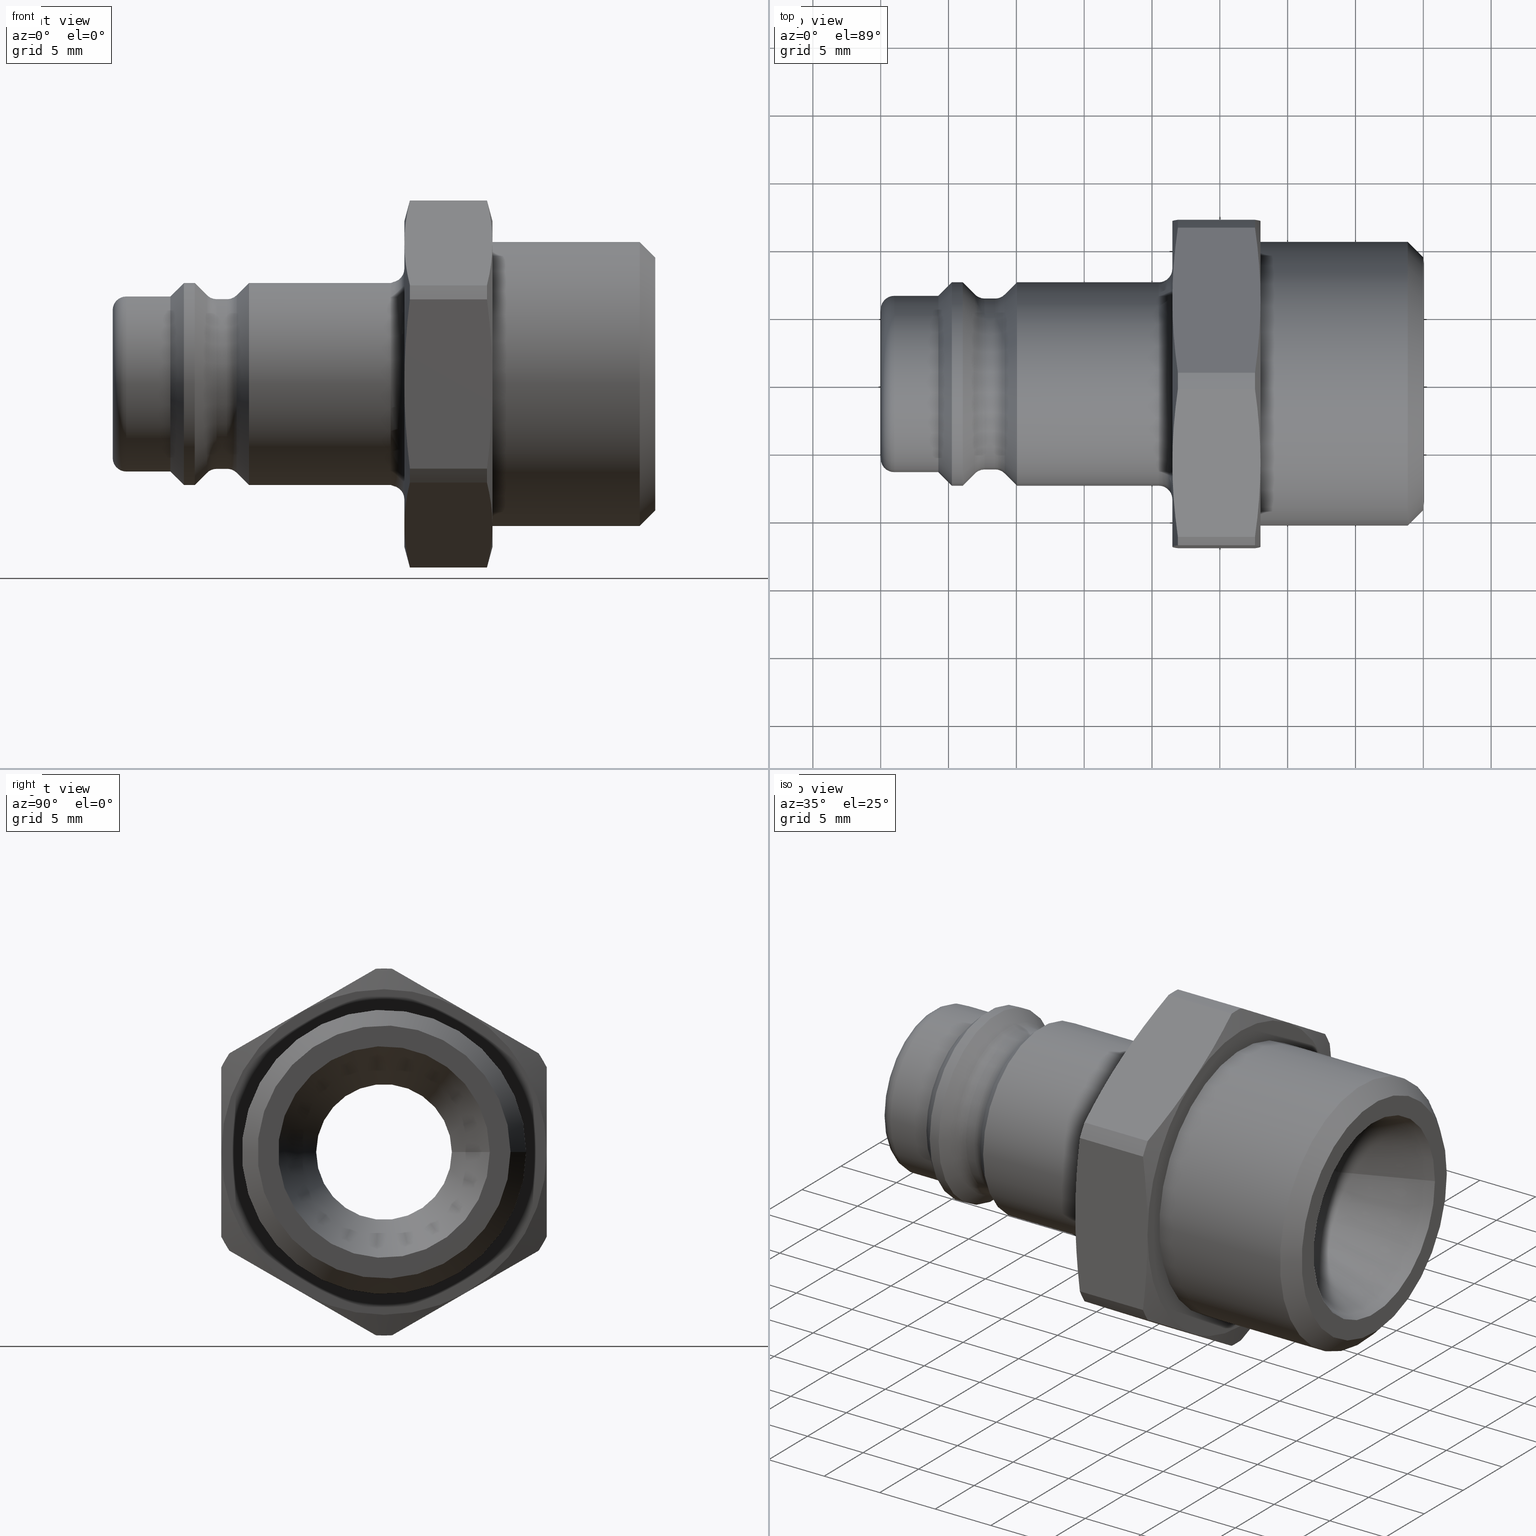
[diagram: canonical four-view strip — front | top / right | iso, engineering-drawing reading convention]
A machine part, canonical four-view strip (front | top / right | iso — engineering-drawing reading convention). The complete STEP part file that produces these views, byte-faithful:
ISO-10303-21;
HEADER;
/****************************************************************
 * Generated by software with PDElib inside                    *
 * PDElib Version v51a, created Wed 11/30/2011                  *
 * ITI Transcendata (http://www.transcendata.com/)              *
 ****************************************************************/
FILE_DESCRIPTION((''),'2;1');
FILE_NAME('J:\\3D Zeichnungen_step\\Serie 41\\41sfaw21mxn.stp','2013-11-05T13:58:23',('IA176480'),(''),'Autodesk Inventor 2013','Autodesk Inventor 2013','');
FILE_SCHEMA(('AUTOMOTIVE_DESIGN { 1 0 10303 214 1 1 1 1 }'));
ENDSEC;
DATA;
#5=APPLICATION_CONTEXT('automotive design');
#6=APPLICATION_PROTOCOL_DEFINITION('International Standard','automotive_design',2001,#5);
#7=PRODUCT_CONTEXT('',#5,'mechanical');
#8=PRODUCT('D108298','D108298',$,(#7));
#9=PRODUCT_RELATED_PRODUCT_CATEGORY('part',$,(#8));
#10=PRODUCT_DEFINITION_FORMATION('',$,#8);
#11=PRODUCT_DEFINITION_CONTEXT('part definition',#5,'design');
#12=PRODUCT_DEFINITION('',$,#10,#11);
#18=(NAMED_UNIT(*)PLANE_ANGLE_UNIT()SI_UNIT($,.RADIAN.));
#19=DIMENSIONAL_EXPONENTS(0.0,0.0,0.0,0.0,0.0,0.0,0.0);
#20=PLANE_ANGLE_MEASURE_WITH_UNIT(PLANE_ANGLE_MEASURE(0.0174532925),#18);
#24=(CONVERSION_BASED_UNIT('DEGREE',#20)NAMED_UNIT(#19)PLANE_ANGLE_UNIT());
#28=(NAMED_UNIT(*)SI_UNIT($,.STERADIAN.)SOLID_ANGLE_UNIT());
#32=(LENGTH_UNIT()NAMED_UNIT(*)SI_UNIT(.MILLI.,.METRE.));
#34=UNCERTAINTY_MEASURE_WITH_UNIT(LENGTH_MEASURE(0.01),#32,'DISTANCE_ACCURACY_VALUE','');
#36=(GEOMETRIC_REPRESENTATION_CONTEXT(3)GLOBAL_UNCERTAINTY_ASSIGNED_CONTEXT((#34))GLOBAL_UNIT_ASSIGNED_CONTEXT((#24,#28,#32))REPRESENTATION_CONTEXT('None','None'));
#37=AXIS2_PLACEMENT_3D('',#38,#39,#40);
#38=CARTESIAN_POINT('',(0.0,0.0,0.0));
#39=DIRECTION('',(0.0,0.0,1.0));
#40=DIRECTION('',(1.0,0.0,0.0));
#41=SHAPE_REPRESENTATION('',(#37),#36);
#42=PRODUCT_DEFINITION_SHAPE('','',#12);
#43=SHAPE_DEFINITION_REPRESENTATION(#42,#41);
#49=(NAMED_UNIT(*)PLANE_ANGLE_UNIT()SI_UNIT($,.RADIAN.));
#50=DIMENSIONAL_EXPONENTS(0.0,0.0,0.0,0.0,0.0,0.0,0.0);
#51=PLANE_ANGLE_MEASURE_WITH_UNIT(PLANE_ANGLE_MEASURE(0.0174532925),#49);
#55=(CONVERSION_BASED_UNIT('DEGREE',#51)NAMED_UNIT(#50)PLANE_ANGLE_UNIT());
#59=(NAMED_UNIT(*)SI_UNIT($,.STERADIAN.)SOLID_ANGLE_UNIT());
#63=(LENGTH_UNIT()NAMED_UNIT(*)SI_UNIT(.MILLI.,.METRE.));
#65=UNCERTAINTY_MEASURE_WITH_UNIT(LENGTH_MEASURE(0.000001),#63,'DISTANCE_ACCURACY_VALUE','');
#67=(GEOMETRIC_REPRESENTATION_CONTEXT(3)GLOBAL_UNCERTAINTY_ASSIGNED_CONTEXT((#65))GLOBAL_UNIT_ASSIGNED_CONTEXT((#55,#59,#63))REPRESENTATION_CONTEXT('','3D'));
#68=CARTESIAN_POINT('',(39.424999999999997,0.0,0.0));
#69=DIRECTION('',(-1.0,0.0,0.0));
#70=DIRECTION('',(0.0,-1.0,0.0));
#71=AXIS2_PLACEMENT_3D('',#68,#69,#70);
#72=CONICAL_SURFACE('',#71,9.902500000000002,44.999999999999943);
#73=CARTESIAN_POINT('',(38.849999999999994,10.477500000000003,1.283124E-015));
#74=VERTEX_POINT('',#73);
#75=CARTESIAN_POINT('',(38.849999999999994,0.0,0.0));
#76=DIRECTION('',(1.0,0.0,0.0));
#77=DIRECTION('',(0.0,-1.0,0.0));
#78=AXIS2_PLACEMENT_3D('',#75,#76,#77);
#79=CIRCLE('',#78,10.477500000000003);
#80=EDGE_CURVE('',#74,#74,#79,.T.);
#81=ORIENTED_EDGE('',*,*,#80,.T.);
#82=EDGE_LOOP('',(#81));
#83=FACE_OUTER_BOUND('',#82,.T.);
#84=CARTESIAN_POINT('',(40.0,9.327500000000002,-1.142289E-015));
#85=VERTEX_POINT('',#84);
#86=CARTESIAN_POINT('',(40.0,0.0,0.0));
#87=DIRECTION('',(-1.0,0.0,0.0));
#88=DIRECTION('',(0.0,-1.0,0.0));
#89=AXIS2_PLACEMENT_3D('',#86,#87,#88);
#90=CIRCLE('',#89,9.327500000000002);
#91=EDGE_CURVE('',#85,#85,#90,.T.);
#92=ORIENTED_EDGE('',*,*,#91,.T.);
#93=EDGE_LOOP('',(#92));
#94=FACE_BOUND('',#93,.T.);
#95=ADVANCED_FACE('',(#83,#94),#72,.T.);
#96=CARTESIAN_POINT('',(34.0,0.0,0.0));
#97=DIRECTION('',(1.0,0.0,0.0));
#98=DIRECTION('',(0.0,1.0,0.0));
#99=AXIS2_PLACEMENT_3D('',#96,#97,#98);
#100=CYLINDRICAL_SURFACE('',#99,10.477500000000003);
#101=CARTESIAN_POINT('',(28.0,10.477499999999999,0.0));
#102=VERTEX_POINT('',#101);
#103=CARTESIAN_POINT('',(28.0,0.0,0.0));
#104=DIRECTION('',(1.0,0.0,0.0));
#105=DIRECTION('',(0.0,1.0,0.0));
#106=AXIS2_PLACEMENT_3D('',#103,#104,#105);
#107=CIRCLE('',#106,10.477499999999999);
#108=EDGE_CURVE('',#102,#102,#107,.T.);
#109=ORIENTED_EDGE('',*,*,#108,.T.);
#110=EDGE_LOOP('',(#109));
#111=FACE_OUTER_BOUND('',#110,.T.);
#112=ORIENTED_EDGE('',*,*,#80,.F.);
#113=EDGE_LOOP('',(#112));
#114=FACE_BOUND('',#113,.T.);
#115=ADVANCED_FACE('',(#111,#114),#100,.T.);
#116=CARTESIAN_POINT('',(40.0,9.138750000000002,0.0));
#117=DIRECTION('',(1.0,0.0,0.0));
#118=DIRECTION('',(0.0,0.0,-1.0));
#119=AXIS2_PLACEMENT_3D('',#116,#117,#118);
#120=PLANE('',#119);
#121=ORIENTED_EDGE('',*,*,#91,.F.);
#122=EDGE_LOOP('',(#121));
#123=FACE_OUTER_BOUND('',#122,.T.);
#124=CARTESIAN_POINT('',(40.0,7.800000000000001,0.0));
#125=VERTEX_POINT('',#124);
#126=CARTESIAN_POINT('',(40.0,0.0,0.0));
#127=DIRECTION('',(1.0,0.0,0.0));
#128=DIRECTION('',(0.0,1.0,0.0));
#129=AXIS2_PLACEMENT_3D('',#126,#127,#128);
#130=CIRCLE('',#129,7.800000000000001);
#131=EDGE_CURVE('',#125,#125,#130,.T.);
#132=ORIENTED_EDGE('',*,*,#131,.F.);
#133=EDGE_LOOP('',(#132));
#134=FACE_BOUND('',#133,.T.);
#135=ADVANCED_FACE('',(#123,#134),#120,.T.);
#136=CARTESIAN_POINT('',(20.562977824473244,5.999999999999995,-10.392304845413271));
#137=DIRECTION('',(0.0,-0.499999999999999,0.866025403784439));
#138=DIRECTION('',(1.0,0.0,0.0));
#139=AXIS2_PLACEMENT_3D('',#136,#137,#138);
#140=PLANE('',#139);
#141=CARTESIAN_POINT('',(21.908622518457463,11.403167473806439,-7.272784649934499));
#142=VERTEX_POINT('',#141);
#143=CARTESIAN_POINT('',(21.499999999999993,5.999999999999993,-10.392304845413275));
#144=VERTEX_POINT('',#143);
#145=CARTESIAN_POINT('',(21.908622518457463,11.403167473806468,-7.272784649934482));
#146=CARTESIAN_POINT('',(21.499999999999993,8.540176677205764,-8.925733157039316));
#147=CARTESIAN_POINT('',(21.5,5.999999999999992,-10.392304845413275));
#155=(BOUNDED_CURVE()B_SPLINE_CURVE(2,(#145,#146,#147),.UNSPECIFIED.,.F.,.U.)B_SPLINE_CURVE_WITH_KNOTS((3,3),(0.0,0.625543956310378),.UNSPECIFIED.)CURVE()GEOMETRIC_REPRESENTATION_ITEM()RATIONAL_B_SPLINE_CURVE((1.0,1.031281565173379,1.0))REPRESENTATION_ITEM(''));
#156=EDGE_CURVE('',#142,#144,#155,.T.);
#157=ORIENTED_EDGE('',*,*,#156,.F.);
#158=CARTESIAN_POINT('',(27.59137748154253,11.403167473806439,-7.272784649934499));
#159=VERTEX_POINT('',#158);
#160=CARTESIAN_POINT('',(27.59137748154253,11.403167473806439,-7.272784649934499));
#161=DIRECTION('',(-1.0,0.0,0.0));
#162=VECTOR('',#161,5.682754963085067);
#163=LINE('',#160,#162);
#164=EDGE_CURVE('',#159,#142,#163,.T.);
#165=ORIENTED_EDGE('',*,*,#164,.F.);
#166=CARTESIAN_POINT('',(28.0,5.999999999999993,-10.392304845413275));
#167=VERTEX_POINT('',#166);
#168=CARTESIAN_POINT('',(28.0,5.999999999999992,-10.392304845413275));
#169=CARTESIAN_POINT('',(27.999999999999993,8.540176677205807,-8.925733157039291));
#170=CARTESIAN_POINT('',(27.59137748154253,11.403167473806439,-7.272784649934499));
#178=(BOUNDED_CURVE()B_SPLINE_CURVE(2,(#168,#169,#170),.UNSPECIFIED.,.F.,.U.)B_SPLINE_CURVE_WITH_KNOTS((3,3),(0.625543956310375,1.251087912620749),.UNSPECIFIED.)CURVE()GEOMETRIC_REPRESENTATION_ITEM()RATIONAL_B_SPLINE_CURVE((1.0,1.031281565173478,1.0))REPRESENTATION_ITEM(''));
#179=EDGE_CURVE('',#167,#159,#178,.T.);
#180=ORIENTED_EDGE('',*,*,#179,.F.);
#181=CARTESIAN_POINT('',(27.59137748154253,0.596832526193548,-13.511825040892049));
#182=VERTEX_POINT('',#181);
#183=CARTESIAN_POINT('',(27.59137748154253,0.596832526193547,-13.511825040892049));
#184=CARTESIAN_POINT('',(27.999999999999993,3.459823322794176,-11.85887653378726));
#185=CARTESIAN_POINT('',(28.0,5.999999999999992,-10.392304845413275));
#193=(BOUNDED_CURVE()B_SPLINE_CURVE(2,(#183,#184,#185),.UNSPECIFIED.,.F.,.U.)B_SPLINE_CURVE_WITH_KNOTS((3,3),(0.0,0.625543956310375),.UNSPECIFIED.)CURVE()GEOMETRIC_REPRESENTATION_ITEM()RATIONAL_B_SPLINE_CURVE((1.0,1.031281565173485,1.0))REPRESENTATION_ITEM(''));
#194=EDGE_CURVE('',#182,#167,#193,.T.);
#195=ORIENTED_EDGE('',*,*,#194,.F.);
#196=CARTESIAN_POINT('',(21.908622518457463,0.596832526193548,-13.511825040892049));
#197=VERTEX_POINT('',#196);
#198=CARTESIAN_POINT('',(21.908622518457463,0.596832526193548,-13.511825040892049));
#199=DIRECTION('',(1.0,0.0,0.0));
#200=VECTOR('',#199,5.682754963085067);
#201=LINE('',#198,#200);
#202=EDGE_CURVE('',#197,#182,#201,.T.);
#203=ORIENTED_EDGE('',*,*,#202,.F.);
#204=CARTESIAN_POINT('',(21.5,5.999999999999992,-10.392304845413275));
#205=CARTESIAN_POINT('',(21.499999999999993,3.45982332279422,-11.858876533787235));
#206=CARTESIAN_POINT('',(21.908622518457463,0.596832526193517,-13.511825040892067));
#214=(BOUNDED_CURVE()B_SPLINE_CURVE(2,(#204,#205,#206),.UNSPECIFIED.,.F.,.U.)B_SPLINE_CURVE_WITH_KNOTS((3,3),(0.625543956310378,1.251087912620756),.UNSPECIFIED.)CURVE()GEOMETRIC_REPRESENTATION_ITEM()RATIONAL_B_SPLINE_CURVE((1.0,1.031281565173381,1.0))REPRESENTATION_ITEM(''));
#215=EDGE_CURVE('',#144,#197,#214,.T.);
#216=ORIENTED_EDGE('',*,*,#215,.F.);
#217=EDGE_LOOP('',(#157,#165,#180,#195,#203,#216));
#218=FACE_OUTER_BOUND('',#217,.T.);
#219=ADVANCED_FACE('',(#218),#140,.F.);
#220=CARTESIAN_POINT('',(20.562977824473244,-6.000000000000006,-10.392304845413262));
#221=DIRECTION('',(0.0,0.5,0.866025403784438));
#222=DIRECTION('',(1.0,0.0,0.0));
#223=AXIS2_PLACEMENT_3D('',#220,#221,#222);
#224=PLANE('',#223);
#225=CARTESIAN_POINT('',(21.908622518457463,-0.596832526193559,-13.511825040892049));
#226=VERTEX_POINT('',#225);
#227=CARTESIAN_POINT('',(21.499999999999993,-6.000000000000006,-10.392304845413262));
#228=VERTEX_POINT('',#227);
#229=CARTESIAN_POINT('',(21.908622518457463,-0.596832526193528,-13.511825040892067));
#230=CARTESIAN_POINT('',(21.499999999999993,-3.459823322794218,-11.858876533787235));
#231=CARTESIAN_POINT('',(21.5,-6.000000000000006,-10.392304845413262));
#239=(BOUNDED_CURVE()B_SPLINE_CURVE(2,(#229,#230,#231),.UNSPECIFIED.,.F.,.U.)B_SPLINE_CURVE_WITH_KNOTS((3,3),(0.0,0.625543956310379),.UNSPECIFIED.)CURVE()GEOMETRIC_REPRESENTATION_ITEM()RATIONAL_B_SPLINE_CURVE((1.0,1.031281565173393,1.0))REPRESENTATION_ITEM(''));
#240=EDGE_CURVE('',#226,#228,#239,.T.);
#241=ORIENTED_EDGE('',*,*,#240,.F.);
#242=CARTESIAN_POINT('',(27.59137748154253,-0.596832526193559,-13.511825040892049));
#243=VERTEX_POINT('',#242);
#244=CARTESIAN_POINT('',(27.59137748154253,-0.596832526193559,-13.511825040892049));
#245=DIRECTION('',(-1.0,0.0,0.0));
#246=VECTOR('',#245,5.682754963085067);
#247=LINE('',#244,#246);
#248=EDGE_CURVE('',#243,#226,#247,.T.);
#249=ORIENTED_EDGE('',*,*,#248,.F.);
#250=CARTESIAN_POINT('',(28.0,-6.000000000000006,-10.392304845413262));
#251=VERTEX_POINT('',#250);
#252=CARTESIAN_POINT('',(28.0,-6.00000000000001,-10.39230484541326));
#253=CARTESIAN_POINT('',(28.0,-3.459823322794229,-11.858876533787228));
#254=CARTESIAN_POINT('',(27.59137748154253,-0.596832526193562,-13.511825040892047));
#262=(BOUNDED_CURVE()B_SPLINE_CURVE(2,(#252,#253,#254),.UNSPECIFIED.,.F.,.U.)B_SPLINE_CURVE_WITH_KNOTS((3,3),(0.625543956310375,1.25108791262075),.UNSPECIFIED.)CURVE()GEOMETRIC_REPRESENTATION_ITEM()RATIONAL_B_SPLINE_CURVE((1.0,1.031281565173478,1.0))REPRESENTATION_ITEM(''));
#263=EDGE_CURVE('',#251,#243,#262,.T.);
#264=ORIENTED_EDGE('',*,*,#263,.F.);
#265=CARTESIAN_POINT('',(27.59137748154253,-11.403167473806452,-7.272784649934476));
#266=VERTEX_POINT('',#265);
#267=CARTESIAN_POINT('',(27.59137748154253,-11.40316747380645,-7.272784649934478));
#268=CARTESIAN_POINT('',(28.0,-8.540176677205787,-8.925733157039295));
#269=CARTESIAN_POINT('',(28.0,-6.00000000000001,-10.39230484541326));
#277=(BOUNDED_CURVE()B_SPLINE_CURVE(2,(#267,#268,#269),.UNSPECIFIED.,.F.,.U.)B_SPLINE_CURVE_WITH_KNOTS((3,3),(0.0,0.625543956310375),.UNSPECIFIED.)CURVE()GEOMETRIC_REPRESENTATION_ITEM()RATIONAL_B_SPLINE_CURVE((1.0,1.031281565173466,1.0))REPRESENTATION_ITEM(''));
#278=EDGE_CURVE('',#266,#251,#277,.T.);
#279=ORIENTED_EDGE('',*,*,#278,.F.);
#280=CARTESIAN_POINT('',(21.908622518457463,-11.403167473806452,-7.272784649934476));
#281=VERTEX_POINT('',#280);
#282=CARTESIAN_POINT('',(21.908622518457463,-11.403167473806452,-7.272784649934476));
#283=DIRECTION('',(1.0,0.0,0.0));
#284=VECTOR('',#283,5.682754963085067);
#285=LINE('',#282,#284);
#286=EDGE_CURVE('',#281,#266,#285,.T.);
#287=ORIENTED_EDGE('',*,*,#286,.F.);
#288=CARTESIAN_POINT('',(21.5,-6.000000000000006,-10.392304845413262));
#289=CARTESIAN_POINT('',(21.5,-8.540176677205833,-8.925733157039268));
#290=CARTESIAN_POINT('',(21.908622518457463,-11.403167473806485,-7.272784649934457));
#298=(BOUNDED_CURVE()B_SPLINE_CURVE(2,(#288,#289,#290),.UNSPECIFIED.,.F.,.U.)B_SPLINE_CURVE_WITH_KNOTS((3,3),(0.625543956310379,1.251087912620758),.UNSPECIFIED.)CURVE()GEOMETRIC_REPRESENTATION_ITEM()RATIONAL_B_SPLINE_CURVE((1.0,1.031281565173426,1.0))REPRESENTATION_ITEM(''));
#299=EDGE_CURVE('',#228,#281,#298,.T.);
#300=ORIENTED_EDGE('',*,*,#299,.F.);
#301=EDGE_LOOP('',(#241,#249,#264,#279,#287,#300));
#302=FACE_OUTER_BOUND('',#301,.T.);
#303=ADVANCED_FACE('',(#302),#224,.F.);
#304=CARTESIAN_POINT('',(20.562977824473244,-12.000000000000002,1.110223E-015));
#305=DIRECTION('',(0.0,1.0,0.0));
#306=DIRECTION('',(1.0,0.0,0.0));
#307=AXIS2_PLACEMENT_3D('',#304,#305,#306);
#308=PLANE('',#307);
#309=CARTESIAN_POINT('',(21.908622518457463,-12.000000000000002,-6.239040390957565));
#310=VERTEX_POINT('',#309);
#311=CARTESIAN_POINT('',(21.499999999999993,-12.000000000000002,1.998401E-015));
#312=VERTEX_POINT('',#311);
#313=CARTESIAN_POINT('',(21.908622518457463,-12.000000000000002,-6.239040390957602));
#314=CARTESIAN_POINT('',(21.499999999999993,-12.000000000000002,-2.933143376747924));
#315=CARTESIAN_POINT('',(21.5,-12.000000000000002,1.998401E-015));
#323=(BOUNDED_CURVE()B_SPLINE_CURVE(2,(#313,#314,#315),.UNSPECIFIED.,.F.,.U.)B_SPLINE_CURVE_WITH_KNOTS((3,3),(0.0,0.625543956310379),.UNSPECIFIED.)CURVE()GEOMETRIC_REPRESENTATION_ITEM()RATIONAL_B_SPLINE_CURVE((1.0,1.031281565173446,1.0))REPRESENTATION_ITEM(''));
#324=EDGE_CURVE('',#310,#312,#323,.T.);
#325=ORIENTED_EDGE('',*,*,#324,.F.);
#326=CARTESIAN_POINT('',(27.59137748154253,-12.000000000000002,-6.239040390957565));
#327=VERTEX_POINT('',#326);
#328=CARTESIAN_POINT('',(27.59137748154253,-12.000000000000002,-6.239040390957565));
#329=DIRECTION('',(-1.0,0.0,0.0));
#330=VECTOR('',#329,5.682754963085067);
#331=LINE('',#328,#330);
#332=EDGE_CURVE('',#327,#310,#331,.T.);
#333=ORIENTED_EDGE('',*,*,#332,.F.);
#334=CARTESIAN_POINT('',(28.0,-12.000000000000002,1.998401E-015));
#335=VERTEX_POINT('',#334);
#336=CARTESIAN_POINT('',(28.0,-12.000000000000002,1.998401E-015));
#337=CARTESIAN_POINT('',(28.0,-12.000000000000002,-2.933143376747944));
#338=CARTESIAN_POINT('',(27.59137748154253,-12.000000000000002,-6.239040390957569));
#346=(BOUNDED_CURVE()B_SPLINE_CURVE(2,(#336,#337,#338),.UNSPECIFIED.,.F.,.U.)B_SPLINE_CURVE_WITH_KNOTS((3,3),(0.625543956310376,1.251087912620751),.UNSPECIFIED.)CURVE()GEOMETRIC_REPRESENTATION_ITEM()RATIONAL_B_SPLINE_CURVE((1.0,1.031281565173471,1.0))REPRESENTATION_ITEM(''));
#347=EDGE_CURVE('',#335,#327,#346,.T.);
#348=ORIENTED_EDGE('',*,*,#347,.F.);
#349=CARTESIAN_POINT('',(27.59137748154253,-12.000000000000002,6.23904039095757));
#350=VERTEX_POINT('',#349);
#351=CARTESIAN_POINT('',(27.59137748154253,-12.000000000000002,6.239040390957572));
#352=CARTESIAN_POINT('',(28.0,-12.000000000000002,2.933143376747949));
#353=CARTESIAN_POINT('',(28.0,-12.000000000000002,1.998401E-015));
#361=(BOUNDED_CURVE()B_SPLINE_CURVE(2,(#351,#352,#353),.UNSPECIFIED.,.F.,.U.)B_SPLINE_CURVE_WITH_KNOTS((3,3),(0.0,0.625543956310376),.UNSPECIFIED.)CURVE()GEOMETRIC_REPRESENTATION_ITEM()RATIONAL_B_SPLINE_CURVE((1.0,1.031281565173463,1.0))REPRESENTATION_ITEM(''));
#362=EDGE_CURVE('',#350,#335,#361,.T.);
#363=ORIENTED_EDGE('',*,*,#362,.F.);
#364=CARTESIAN_POINT('',(21.908622518457463,-12.000000000000002,6.23904039095757));
#365=VERTEX_POINT('',#364);
#366=CARTESIAN_POINT('',(21.908622518457463,-12.000000000000002,6.23904039095757));
#367=DIRECTION('',(1.0,0.0,0.0));
#368=VECTOR('',#367,5.682754963085067);
#369=LINE('',#366,#368);
#370=EDGE_CURVE('',#365,#350,#369,.T.);
#371=ORIENTED_EDGE('',*,*,#370,.F.);
#372=CARTESIAN_POINT('',(21.5,-12.000000000000002,1.998401E-015));
#373=CARTESIAN_POINT('',(21.499999999999993,-12.000000000000002,2.933143376747929));
#374=CARTESIAN_POINT('',(21.908622518457463,-12.000000000000002,6.239040390957605));
#382=(BOUNDED_CURVE()B_SPLINE_CURVE(2,(#372,#373,#374),.UNSPECIFIED.,.F.,.U.)B_SPLINE_CURVE_WITH_KNOTS((3,3),(0.625543956310379,1.251087912620758),.UNSPECIFIED.)CURVE()GEOMETRIC_REPRESENTATION_ITEM()RATIONAL_B_SPLINE_CURVE((1.0,1.031281565173394,1.0))REPRESENTATION_ITEM(''));
#383=EDGE_CURVE('',#312,#365,#382,.T.);
#384=ORIENTED_EDGE('',*,*,#383,.F.);
#385=EDGE_LOOP('',(#325,#333,#348,#363,#371,#384));
#386=FACE_OUTER_BOUND('',#385,.T.);
#387=ADVANCED_FACE('',(#386),#308,.F.);
#388=CARTESIAN_POINT('',(20.562977824473244,-5.999999999999998,10.392304845413268));
#389=DIRECTION('',(0.0,0.5,-0.866025403784439));
#390=DIRECTION('',(1.0,0.0,0.0));
#391=AXIS2_PLACEMENT_3D('',#388,#389,#390);
#392=PLANE('',#391);
#393=CARTESIAN_POINT('',(21.908622518457463,-11.403167473806448,7.272784649934485));
#394=VERTEX_POINT('',#393);
#395=CARTESIAN_POINT('',(21.499999999999993,-5.999999999999998,10.392304845413268));
#396=VERTEX_POINT('',#395);
#397=CARTESIAN_POINT('',(21.908622518457463,-11.403167473806475,7.27278464993447));
#398=CARTESIAN_POINT('',(21.499999999999989,-8.540176677205732,8.92573315703933));
#399=CARTESIAN_POINT('',(21.5,-5.999999999999998,10.392304845413268));
#407=(BOUNDED_CURVE()B_SPLINE_CURVE(2,(#397,#398,#399),.UNSPECIFIED.,.F.,.U.)B_SPLINE_CURVE_WITH_KNOTS((3,3),(0.0,0.625543956310378),.UNSPECIFIED.)CURVE()GEOMETRIC_REPRESENTATION_ITEM()RATIONAL_B_SPLINE_CURVE((1.0,1.031281565173411,1.0))REPRESENTATION_ITEM(''));
#408=EDGE_CURVE('',#394,#396,#407,.T.);
#409=ORIENTED_EDGE('',*,*,#408,.F.);
#410=CARTESIAN_POINT('',(27.59137748154253,-11.403167473806448,7.272784649934485));
#411=VERTEX_POINT('',#410);
#412=CARTESIAN_POINT('',(27.59137748154253,-11.403167473806448,7.272784649934485));
#413=DIRECTION('',(-1.0,0.0,0.0));
#414=VECTOR('',#413,5.682754963085067);
#415=LINE('',#412,#414);
#416=EDGE_CURVE('',#411,#394,#415,.T.);
#417=ORIENTED_EDGE('',*,*,#416,.F.);
#418=CARTESIAN_POINT('',(28.0,-5.999999999999998,10.392304845413268));
#419=VERTEX_POINT('',#418);
#420=CARTESIAN_POINT('',(28.0,-5.999999999999998,10.392304845413268));
#421=CARTESIAN_POINT('',(28.0,-8.540176677205761,8.925733157039312));
#422=CARTESIAN_POINT('',(27.59137748154253,-11.403167473806446,7.272784649934487));
#430=(BOUNDED_CURVE()B_SPLINE_CURVE(2,(#420,#421,#422),.UNSPECIFIED.,.F.,.U.)B_SPLINE_CURVE_WITH_KNOTS((3,3),(0.625543956310375,1.25108791262075),.UNSPECIFIED.)CURVE()GEOMETRIC_REPRESENTATION_ITEM()RATIONAL_B_SPLINE_CURVE((1.0,1.031281565173483,1.0))REPRESENTATION_ITEM(''));
#431=EDGE_CURVE('',#419,#411,#430,.T.);
#432=ORIENTED_EDGE('',*,*,#431,.F.);
#433=CARTESIAN_POINT('',(27.59137748154253,-0.596832526193548,13.511825040892049));
#434=VERTEX_POINT('',#433);
#435=CARTESIAN_POINT('',(27.59137748154253,-0.59683252619355,13.511825040892047));
#436=CARTESIAN_POINT('',(28.0,-3.459823322794237,11.858876533787221));
#437=CARTESIAN_POINT('',(28.0,-5.999999999999998,10.392304845413268));
#445=(BOUNDED_CURVE()B_SPLINE_CURVE(2,(#435,#436,#437),.UNSPECIFIED.,.F.,.U.)B_SPLINE_CURVE_WITH_KNOTS((3,3),(0.0,0.625543956310375),.UNSPECIFIED.)CURVE()GEOMETRIC_REPRESENTATION_ITEM()RATIONAL_B_SPLINE_CURVE((1.0,1.031281565173473,1.0))REPRESENTATION_ITEM(''));
#446=EDGE_CURVE('',#434,#419,#445,.T.);
#447=ORIENTED_EDGE('',*,*,#446,.F.);
#448=CARTESIAN_POINT('',(21.908622518457463,-0.596832526193548,13.511825040892049));
#449=VERTEX_POINT('',#448);
#450=CARTESIAN_POINT('',(21.908622518457463,-0.596832526193548,13.511825040892049));
#451=DIRECTION('',(1.0,0.0,0.0));
#452=VECTOR('',#451,5.682754963085067);
#453=LINE('',#450,#452);
#454=EDGE_CURVE('',#449,#434,#453,.T.);
#455=ORIENTED_EDGE('',*,*,#454,.F.);
#456=CARTESIAN_POINT('',(21.5,-5.999999999999998,10.392304845413268));
#457=CARTESIAN_POINT('',(21.499999999999989,-3.459823322794264,11.858876533787207));
#458=CARTESIAN_POINT('',(21.908622518457463,-0.596832526193518,13.511825040892067));
#466=(BOUNDED_CURVE()B_SPLINE_CURVE(2,(#456,#457,#458),.UNSPECIFIED.,.F.,.U.)B_SPLINE_CURVE_WITH_KNOTS((3,3),(0.625543956310378,1.251087912620757),.UNSPECIFIED.)CURVE()GEOMETRIC_REPRESENTATION_ITEM()RATIONAL_B_SPLINE_CURVE((1.0,1.031281565173405,1.0))REPRESENTATION_ITEM(''));
#467=EDGE_CURVE('',#396,#449,#466,.T.);
#468=ORIENTED_EDGE('',*,*,#467,.F.);
#469=EDGE_LOOP('',(#409,#417,#432,#447,#455,#468));
#470=FACE_OUTER_BOUND('',#469,.T.);
#471=ADVANCED_FACE('',(#470),#392,.F.);
#472=CARTESIAN_POINT('',(20.562977824473244,6.000000000000002,10.392304845413264));
#473=DIRECTION('',(0.0,-0.5,-0.866025403784439));
#474=DIRECTION('',(1.0,0.0,0.0));
#475=AXIS2_PLACEMENT_3D('',#472,#473,#474);
#476=PLANE('',#475);
#477=CARTESIAN_POINT('',(21.908622518457463,0.596832526193553,13.511825040892049));
#478=VERTEX_POINT('',#477);
#479=CARTESIAN_POINT('',(21.499999999999993,6.000000000000002,10.392304845413264));
#480=VERTEX_POINT('',#479);
#481=CARTESIAN_POINT('',(21.908622518457463,0.596832526193522,13.511825040892067));
#482=CARTESIAN_POINT('',(21.499999999999993,3.459823322794255,11.858876533787212));
#483=CARTESIAN_POINT('',(21.5,6.000000000000002,10.392304845413264));
#491=(BOUNDED_CURVE()B_SPLINE_CURVE(2,(#481,#482,#483),.UNSPECIFIED.,.F.,.U.)B_SPLINE_CURVE_WITH_KNOTS((3,3),(0.0,0.625543956310379),.UNSPECIFIED.)CURVE()GEOMETRIC_REPRESENTATION_ITEM()RATIONAL_B_SPLINE_CURVE((1.0,1.031281565173458,1.0))REPRESENTATION_ITEM(''));
#492=EDGE_CURVE('',#478,#480,#491,.T.);
#493=ORIENTED_EDGE('',*,*,#492,.F.);
#494=CARTESIAN_POINT('',(27.59137748154253,0.596832526193553,13.511825040892049));
#495=VERTEX_POINT('',#494);
#496=CARTESIAN_POINT('',(27.59137748154253,0.596832526193553,13.511825040892049));
#497=DIRECTION('',(-1.0,0.0,0.0));
#498=VECTOR('',#497,5.682754963085067);
#499=LINE('',#496,#498);
#500=EDGE_CURVE('',#495,#478,#499,.T.);
#501=ORIENTED_EDGE('',*,*,#500,.F.);
#502=CARTESIAN_POINT('',(28.0,6.000000000000002,10.392304845413264));
#503=VERTEX_POINT('',#502);
#504=CARTESIAN_POINT('',(28.0,6.000000000000002,10.392304845413264));
#505=CARTESIAN_POINT('',(28.0,3.459823322794242,11.858876533787219));
#506=CARTESIAN_POINT('',(27.59137748154253,0.596832526193556,13.511825040892047));
#514=(BOUNDED_CURVE()B_SPLINE_CURVE(2,(#504,#505,#506),.UNSPECIFIED.,.F.,.U.)B_SPLINE_CURVE_WITH_KNOTS((3,3),(0.625543956310375,1.25108791262075),.UNSPECIFIED.)CURVE()GEOMETRIC_REPRESENTATION_ITEM()RATIONAL_B_SPLINE_CURVE((1.0,1.031281565173475,1.0))REPRESENTATION_ITEM(''));
#515=EDGE_CURVE('',#503,#495,#514,.T.);
#516=ORIENTED_EDGE('',*,*,#515,.F.);
#517=CARTESIAN_POINT('',(27.59137748154253,11.403167473806452,7.272784649934481));
#518=VERTEX_POINT('',#517);
#519=CARTESIAN_POINT('',(27.59137748154253,11.403167473806448,7.272784649934482));
#520=CARTESIAN_POINT('',(27.999999999999993,8.540176677205809,8.925733157039282));
#521=CARTESIAN_POINT('',(28.0,6.000000000000002,10.392304845413264));
#529=(BOUNDED_CURVE()B_SPLINE_CURVE(2,(#519,#520,#521),.UNSPECIFIED.,.F.,.U.)B_SPLINE_CURVE_WITH_KNOTS((3,3),(0.0,0.625543956310375),.UNSPECIFIED.)CURVE()GEOMETRIC_REPRESENTATION_ITEM()RATIONAL_B_SPLINE_CURVE((1.0,1.031281565173527,1.0))REPRESENTATION_ITEM(''));
#530=EDGE_CURVE('',#518,#503,#529,.T.);
#531=ORIENTED_EDGE('',*,*,#530,.F.);
#532=CARTESIAN_POINT('',(21.908622518457463,11.403167473806452,7.272784649934481));
#533=VERTEX_POINT('',#532);
#534=CARTESIAN_POINT('',(21.908622518457463,11.403167473806452,7.272784649934481));
#535=DIRECTION('',(1.0,0.0,0.0));
#536=VECTOR('',#535,5.682754963085067);
#537=LINE('',#534,#536);
#538=EDGE_CURVE('',#533,#518,#537,.T.);
#539=ORIENTED_EDGE('',*,*,#538,.F.);
#540=CARTESIAN_POINT('',(21.5,6.000000000000002,10.392304845413264));
#541=CARTESIAN_POINT('',(21.499999999999993,8.54017667720575,8.925733157039316));
#542=CARTESIAN_POINT('',(21.908622518457463,11.403167473806484,7.272784649934462));
#550=(BOUNDED_CURVE()B_SPLINE_CURVE(2,(#540,#541,#542),.UNSPECIFIED.,.F.,.U.)B_SPLINE_CURVE_WITH_KNOTS((3,3),(0.625543956310379,1.251087912620758),.UNSPECIFIED.)CURVE()GEOMETRIC_REPRESENTATION_ITEM()RATIONAL_B_SPLINE_CURVE((1.0,1.031281565173471,1.0))REPRESENTATION_ITEM(''));
#551=EDGE_CURVE('',#480,#533,#550,.T.);
#552=ORIENTED_EDGE('',*,*,#551,.F.);
#553=EDGE_LOOP('',(#493,#501,#516,#531,#539,#552));
#554=FACE_OUTER_BOUND('',#553,.T.);
#555=ADVANCED_FACE('',(#554),#476,.F.);
#556=CARTESIAN_POINT('',(27.795688740771265,0.0,0.0));
#557=DIRECTION('',(-1.0,0.0,0.0));
#558=DIRECTION('',(0.0,1.0,0.0));
#559=AXIS2_PLACEMENT_3D('',#556,#557,#558);
#560=CONICAL_SURFACE('',#559,12.762500000000001,74.999999999999844);
#561=ORIENTED_EDGE('',*,*,#530,.T.);
#562=CARTESIAN_POINT('',(28.0,12.000000000000002,0.0));
#563=VERTEX_POINT('',#562);
#564=CARTESIAN_POINT('',(28.0,0.0,0.0));
#565=DIRECTION('',(1.0,0.0,0.0));
#566=DIRECTION('',(0.0,1.0,0.0));
#567=AXIS2_PLACEMENT_3D('',#564,#565,#566);
#568=CIRCLE('',#567,12.000000000000002);
#569=EDGE_CURVE('',#563,#503,#568,.T.);
#570=ORIENTED_EDGE('',*,*,#569,.F.);
#571=CARTESIAN_POINT('',(27.59137748154253,12.000000000000002,6.239040390957568));
#572=VERTEX_POINT('',#571);
#573=CARTESIAN_POINT('',(28.0,12.000000000000002,0.0));
#574=CARTESIAN_POINT('',(28.0,12.000000000000002,2.933143376747947));
#575=CARTESIAN_POINT('',(27.59137748154253,12.000000000000002,6.239040390957571));
#583=(BOUNDED_CURVE()B_SPLINE_CURVE(2,(#573,#574,#575),.UNSPECIFIED.,.F.,.U.)B_SPLINE_CURVE_WITH_KNOTS((3,3),(0.625543956310376,1.251087912620752),.UNSPECIFIED.)CURVE()GEOMETRIC_REPRESENTATION_ITEM()RATIONAL_B_SPLINE_CURVE((1.0,1.031281565173471,1.0))REPRESENTATION_ITEM(''));
#584=EDGE_CURVE('',#563,#572,#583,.T.);
#585=ORIENTED_EDGE('',*,*,#584,.T.);
#586=CARTESIAN_POINT('',(27.59137748154253,0.0,0.0));
#587=DIRECTION('',(1.0,0.0,0.0));
#588=DIRECTION('',(0.0,1.0,0.0));
#589=AXIS2_PLACEMENT_3D('',#586,#587,#588);
#590=CIRCLE('',#589,13.525);
#591=EDGE_CURVE('',#572,#518,#590,.T.);
#592=ORIENTED_EDGE('',*,*,#591,.T.);
#593=EDGE_LOOP('',(#561,#570,#585,#592));
#594=FACE_OUTER_BOUND('',#593,.T.);
#595=ADVANCED_FACE('',(#594),#560,.T.);
#596=CARTESIAN_POINT('',(27.795688740771265,0.0,0.0));
#597=DIRECTION('',(-1.0,0.0,0.0));
#598=DIRECTION('',(0.0,1.0,0.0));
#599=AXIS2_PLACEMENT_3D('',#596,#597,#598);
#600=CONICAL_SURFACE('',#599,12.762500000000001,74.999999999999844);
#601=ORIENTED_EDGE('',*,*,#446,.T.);
#602=CARTESIAN_POINT('',(28.0,0.0,0.0));
#603=DIRECTION('',(1.0,0.0,0.0));
#604=DIRECTION('',(0.0,1.0,0.0));
#605=AXIS2_PLACEMENT_3D('',#602,#603,#604);
#606=CIRCLE('',#605,12.000000000000002);
#607=EDGE_CURVE('',#503,#419,#606,.T.);
#608=ORIENTED_EDGE('',*,*,#607,.F.);
#609=ORIENTED_EDGE('',*,*,#515,.T.);
#610=CARTESIAN_POINT('',(27.59137748154253,0.0,0.0));
#611=DIRECTION('',(1.0,0.0,0.0));
#612=DIRECTION('',(0.0,1.0,0.0));
#613=AXIS2_PLACEMENT_3D('',#610,#611,#612);
#614=CIRCLE('',#613,13.525);
#615=EDGE_CURVE('',#495,#434,#614,.T.);
#616=ORIENTED_EDGE('',*,*,#615,.T.);
#617=EDGE_LOOP('',(#601,#608,#609,#616));
#618=FACE_OUTER_BOUND('',#617,.T.);
#619=ADVANCED_FACE('',(#618),#600,.T.);
#620=CARTESIAN_POINT('',(27.795688740771265,0.0,0.0));
#621=DIRECTION('',(-1.0,0.0,0.0));
#622=DIRECTION('',(0.0,1.0,0.0));
#623=AXIS2_PLACEMENT_3D('',#620,#621,#622);
#624=CONICAL_SURFACE('',#623,12.762500000000001,74.999999999999844);
#625=ORIENTED_EDGE('',*,*,#362,.T.);
#626=CARTESIAN_POINT('',(28.0,0.0,0.0));
#627=DIRECTION('',(1.0,0.0,0.0));
#628=DIRECTION('',(0.0,1.0,0.0));
#629=AXIS2_PLACEMENT_3D('',#626,#627,#628);
#630=CIRCLE('',#629,12.000000000000002);
#631=EDGE_CURVE('',#419,#335,#630,.T.);
#632=ORIENTED_EDGE('',*,*,#631,.F.);
#633=ORIENTED_EDGE('',*,*,#431,.T.);
#634=CARTESIAN_POINT('',(27.59137748154253,0.0,0.0));
#635=DIRECTION('',(1.0,0.0,0.0));
#636=DIRECTION('',(0.0,1.0,0.0));
#637=AXIS2_PLACEMENT_3D('',#634,#635,#636);
#638=CIRCLE('',#637,13.525);
#639=EDGE_CURVE('',#411,#350,#638,.T.);
#640=ORIENTED_EDGE('',*,*,#639,.T.);
#641=EDGE_LOOP('',(#625,#632,#633,#640));
#642=FACE_OUTER_BOUND('',#641,.T.);
#643=ADVANCED_FACE('',(#642),#624,.T.);
#644=CARTESIAN_POINT('',(27.795688740771265,0.0,0.0));
#645=DIRECTION('',(-1.0,0.0,0.0));
#646=DIRECTION('',(0.0,1.0,0.0));
#647=AXIS2_PLACEMENT_3D('',#644,#645,#646);
#648=CONICAL_SURFACE('',#647,12.762500000000001,74.999999999999844);
#649=ORIENTED_EDGE('',*,*,#278,.T.);
#650=CARTESIAN_POINT('',(28.0,0.0,0.0));
#651=DIRECTION('',(1.0,0.0,0.0));
#652=DIRECTION('',(0.0,1.0,0.0));
#653=AXIS2_PLACEMENT_3D('',#650,#651,#652);
#654=CIRCLE('',#653,12.000000000000002);
#655=EDGE_CURVE('',#335,#251,#654,.T.);
#656=ORIENTED_EDGE('',*,*,#655,.F.);
#657=ORIENTED_EDGE('',*,*,#347,.T.);
#658=CARTESIAN_POINT('',(27.59137748154253,0.0,0.0));
#659=DIRECTION('',(1.0,0.0,0.0));
#660=DIRECTION('',(0.0,1.0,0.0));
#661=AXIS2_PLACEMENT_3D('',#658,#659,#660);
#662=CIRCLE('',#661,13.525);
#663=EDGE_CURVE('',#327,#266,#662,.T.);
#664=ORIENTED_EDGE('',*,*,#663,.T.);
#665=EDGE_LOOP('',(#649,#656,#657,#664));
#666=FACE_OUTER_BOUND('',#665,.T.);
#667=ADVANCED_FACE('',(#666),#648,.T.);
#668=CARTESIAN_POINT('',(27.795688740771265,0.0,0.0));
#669=DIRECTION('',(-1.0,0.0,0.0));
#670=DIRECTION('',(0.0,1.0,0.0));
#671=AXIS2_PLACEMENT_3D('',#668,#669,#670);
#672=CONICAL_SURFACE('',#671,12.762500000000001,74.999999999999844);
#673=ORIENTED_EDGE('',*,*,#179,.T.);
#674=CARTESIAN_POINT('',(27.59137748154253,12.000000000000002,-6.239040390957568));
#675=VERTEX_POINT('',#674);
#676=CARTESIAN_POINT('',(27.59137748154253,0.0,0.0));
#677=DIRECTION('',(1.0,0.0,0.0));
#678=DIRECTION('',(0.0,1.0,0.0));
#679=AXIS2_PLACEMENT_3D('',#676,#677,#678);
#680=CIRCLE('',#679,13.525);
#681=EDGE_CURVE('',#159,#675,#680,.T.);
#682=ORIENTED_EDGE('',*,*,#681,.T.);
#683=CARTESIAN_POINT('',(27.59137748154253,12.000000000000002,-6.239040390957571));
#684=CARTESIAN_POINT('',(28.0,12.000000000000002,-2.933143376747947));
#685=CARTESIAN_POINT('',(28.0,12.000000000000002,0.0));
#693=(BOUNDED_CURVE()B_SPLINE_CURVE(2,(#683,#684,#685),.UNSPECIFIED.,.F.,.U.)B_SPLINE_CURVE_WITH_KNOTS((3,3),(0.0,0.625543956310376),.UNSPECIFIED.)CURVE()GEOMETRIC_REPRESENTATION_ITEM()RATIONAL_B_SPLINE_CURVE((1.0,1.031281565173471,1.0))REPRESENTATION_ITEM(''));
#694=EDGE_CURVE('',#675,#563,#693,.T.);
#695=ORIENTED_EDGE('',*,*,#694,.T.);
#696=CARTESIAN_POINT('',(28.0,0.0,0.0));
#697=DIRECTION('',(1.0,0.0,0.0));
#698=DIRECTION('',(0.0,1.0,0.0));
#699=AXIS2_PLACEMENT_3D('',#696,#697,#698);
#700=CIRCLE('',#699,12.000000000000002);
#701=EDGE_CURVE('',#167,#563,#700,.T.);
#702=ORIENTED_EDGE('',*,*,#701,.F.);
#703=EDGE_LOOP('',(#673,#682,#695,#702));
#704=FACE_OUTER_BOUND('',#703,.T.);
#705=ADVANCED_FACE('',(#704),#672,.T.);
#706=CARTESIAN_POINT('',(27.795688740771265,0.0,0.0));
#707=DIRECTION('',(-1.0,0.0,0.0));
#708=DIRECTION('',(0.0,1.0,0.0));
#709=AXIS2_PLACEMENT_3D('',#706,#707,#708);
#710=CONICAL_SURFACE('',#709,12.762500000000001,74.999999999999844);
#711=ORIENTED_EDGE('',*,*,#194,.T.);
#712=CARTESIAN_POINT('',(28.0,0.0,0.0));
#713=DIRECTION('',(1.0,0.0,0.0));
#714=DIRECTION('',(0.0,1.0,0.0));
#715=AXIS2_PLACEMENT_3D('',#712,#713,#714);
#716=CIRCLE('',#715,12.000000000000002);
#717=EDGE_CURVE('',#251,#167,#716,.T.);
#718=ORIENTED_EDGE('',*,*,#717,.F.);
#719=ORIENTED_EDGE('',*,*,#263,.T.);
#720=CARTESIAN_POINT('',(27.59137748154253,0.0,0.0));
#721=DIRECTION('',(1.0,0.0,0.0));
#722=DIRECTION('',(0.0,1.0,0.0));
#723=AXIS2_PLACEMENT_3D('',#720,#721,#722);
#724=CIRCLE('',#723,13.525);
#725=EDGE_CURVE('',#243,#182,#724,.T.);
#726=ORIENTED_EDGE('',*,*,#725,.T.);
#727=EDGE_LOOP('',(#711,#718,#719,#726));
#728=FACE_OUTER_BOUND('',#727,.T.);
#729=ADVANCED_FACE('',(#728),#710,.T.);
#730=CARTESIAN_POINT('',(24.749999999999996,0.0,0.0));
#731=DIRECTION('',(1.0,0.0,0.0));
#732=DIRECTION('',(0.0,1.0,0.0));
#733=AXIS2_PLACEMENT_3D('',#730,#731,#732);
#734=CYLINDRICAL_SURFACE('',#733,13.525);
#735=ORIENTED_EDGE('',*,*,#164,.T.);
#736=CARTESIAN_POINT('',(21.908622518457463,12.000000000000002,-6.239040390957568));
#737=VERTEX_POINT('',#736);
#738=CARTESIAN_POINT('',(21.908622518457456,0.0,0.0));
#739=DIRECTION('',(1.0,0.0,0.0));
#740=DIRECTION('',(0.0,1.0,0.0));
#741=AXIS2_PLACEMENT_3D('',#738,#739,#740);
#742=CIRCLE('',#741,13.525);
#743=EDGE_CURVE('',#142,#737,#742,.T.);
#744=ORIENTED_EDGE('',*,*,#743,.T.);
#745=CARTESIAN_POINT('',(21.908622518457463,12.000000000000002,-6.239040390957568));
#746=DIRECTION('',(1.0,0.0,0.0));
#747=VECTOR('',#746,5.682754963085067);
#748=LINE('',#745,#747);
#749=EDGE_CURVE('',#737,#675,#748,.T.);
#750=ORIENTED_EDGE('',*,*,#749,.T.);
#751=ORIENTED_EDGE('',*,*,#681,.F.);
#752=EDGE_LOOP('',(#735,#744,#750,#751));
#753=FACE_OUTER_BOUND('',#752,.T.);
#754=ADVANCED_FACE('',(#753),#734,.T.);
#755=CARTESIAN_POINT('',(24.749999999999996,0.0,0.0));
#756=DIRECTION('',(1.0,0.0,0.0));
#757=DIRECTION('',(0.0,1.0,0.0));
#758=AXIS2_PLACEMENT_3D('',#755,#756,#757);
#759=CYLINDRICAL_SURFACE('',#758,13.525);
#760=ORIENTED_EDGE('',*,*,#538,.T.);
#761=ORIENTED_EDGE('',*,*,#591,.F.);
#762=CARTESIAN_POINT('',(21.908622518457463,12.000000000000002,6.239040390957568));
#763=VERTEX_POINT('',#762);
#764=CARTESIAN_POINT('',(27.59137748154253,12.000000000000002,6.239040390957568));
#765=DIRECTION('',(-1.0,0.0,0.0));
#766=VECTOR('',#765,5.682754963085067);
#767=LINE('',#764,#766);
#768=EDGE_CURVE('',#572,#763,#767,.T.);
#769=ORIENTED_EDGE('',*,*,#768,.T.);
#770=CARTESIAN_POINT('',(21.908622518457456,0.0,0.0));
#771=DIRECTION('',(1.0,0.0,0.0));
#772=DIRECTION('',(0.0,1.0,0.0));
#773=AXIS2_PLACEMENT_3D('',#770,#771,#772);
#774=CIRCLE('',#773,13.525);
#775=EDGE_CURVE('',#763,#533,#774,.T.);
#776=ORIENTED_EDGE('',*,*,#775,.T.);
#777=EDGE_LOOP('',(#760,#761,#769,#776));
#778=FACE_OUTER_BOUND('',#777,.T.);
#779=ADVANCED_FACE('',(#778),#759,.T.);
#780=CARTESIAN_POINT('',(24.749999999999996,0.0,0.0));
#781=DIRECTION('',(1.0,0.0,0.0));
#782=DIRECTION('',(0.0,1.0,0.0));
#783=AXIS2_PLACEMENT_3D('',#780,#781,#782);
#784=CYLINDRICAL_SURFACE('',#783,13.525);
#785=ORIENTED_EDGE('',*,*,#454,.T.);
#786=ORIENTED_EDGE('',*,*,#615,.F.);
#787=ORIENTED_EDGE('',*,*,#500,.T.);
#788=CARTESIAN_POINT('',(21.908622518457456,0.0,0.0));
#789=DIRECTION('',(1.0,0.0,0.0));
#790=DIRECTION('',(0.0,1.0,0.0));
#791=AXIS2_PLACEMENT_3D('',#788,#789,#790);
#792=CIRCLE('',#791,13.525);
#793=EDGE_CURVE('',#478,#449,#792,.T.);
#794=ORIENTED_EDGE('',*,*,#793,.T.);
#795=EDGE_LOOP('',(#785,#786,#787,#794));
#796=FACE_OUTER_BOUND('',#795,.T.);
#797=ADVANCED_FACE('',(#796),#784,.T.);
#798=CARTESIAN_POINT('',(24.749999999999996,0.0,0.0));
#799=DIRECTION('',(1.0,0.0,0.0));
#800=DIRECTION('',(0.0,1.0,0.0));
#801=AXIS2_PLACEMENT_3D('',#798,#799,#800);
#802=CYLINDRICAL_SURFACE('',#801,13.525);
#803=ORIENTED_EDGE('',*,*,#370,.T.);
#804=ORIENTED_EDGE('',*,*,#639,.F.);
#805=ORIENTED_EDGE('',*,*,#416,.T.);
#806=CARTESIAN_POINT('',(21.908622518457456,0.0,0.0));
#807=DIRECTION('',(1.0,0.0,0.0));
#808=DIRECTION('',(0.0,1.0,0.0));
#809=AXIS2_PLACEMENT_3D('',#806,#807,#808);
#810=CIRCLE('',#809,13.525);
#811=EDGE_CURVE('',#394,#365,#810,.T.);
#812=ORIENTED_EDGE('',*,*,#811,.T.);
#813=EDGE_LOOP('',(#803,#804,#805,#812));
#814=FACE_OUTER_BOUND('',#813,.T.);
#815=ADVANCED_FACE('',(#814),#802,.T.);
#816=CARTESIAN_POINT('',(24.749999999999996,0.0,0.0));
#817=DIRECTION('',(1.0,0.0,0.0));
#818=DIRECTION('',(0.0,1.0,0.0));
#819=AXIS2_PLACEMENT_3D('',#816,#817,#818);
#820=CYLINDRICAL_SURFACE('',#819,13.525);
#821=ORIENTED_EDGE('',*,*,#286,.T.);
#822=ORIENTED_EDGE('',*,*,#663,.F.);
#823=ORIENTED_EDGE('',*,*,#332,.T.);
#824=CARTESIAN_POINT('',(21.908622518457456,0.0,0.0));
#825=DIRECTION('',(1.0,0.0,0.0));
#826=DIRECTION('',(0.0,1.0,0.0));
#827=AXIS2_PLACEMENT_3D('',#824,#825,#826);
#828=CIRCLE('',#827,13.525);
#829=EDGE_CURVE('',#310,#281,#828,.T.);
#830=ORIENTED_EDGE('',*,*,#829,.T.);
#831=EDGE_LOOP('',(#821,#822,#823,#830));
#832=FACE_OUTER_BOUND('',#831,.T.);
#833=ADVANCED_FACE('',(#832),#820,.T.);
#834=CARTESIAN_POINT('',(21.704311259228728,0.0,0.0));
#835=DIRECTION('',(1.0,0.0,0.0));
#836=DIRECTION('',(0.0,1.0,0.0));
#837=AXIS2_PLACEMENT_3D('',#834,#835,#836);
#838=CONICAL_SURFACE('',#837,12.762500000000001,75.000000000000185);
#839=ORIENTED_EDGE('',*,*,#156,.T.);
#840=CARTESIAN_POINT('',(21.5,12.000000000000002,0.0));
#841=VERTEX_POINT('',#840);
#842=CARTESIAN_POINT('',(21.5,0.0,0.0));
#843=DIRECTION('',(1.0,0.0,0.0));
#844=DIRECTION('',(0.0,1.0,0.0));
#845=AXIS2_PLACEMENT_3D('',#842,#843,#844);
#846=CIRCLE('',#845,12.000000000000002);
#847=EDGE_CURVE('',#144,#841,#846,.T.);
#848=ORIENTED_EDGE('',*,*,#847,.T.);
#849=CARTESIAN_POINT('',(21.5,12.000000000000002,0.0));
#850=CARTESIAN_POINT('',(21.5,12.000000000000002,-2.933143376747943));
#851=CARTESIAN_POINT('',(21.908622518457456,12.000000000000002,-6.239040390957571));
#859=(BOUNDED_CURVE()B_SPLINE_CURVE(2,(#849,#850,#851),.UNSPECIFIED.,.F.,.U.)B_SPLINE_CURVE_WITH_KNOTS((3,3),(0.625543956310376,1.251087912620751),.UNSPECIFIED.)CURVE()GEOMETRIC_REPRESENTATION_ITEM()RATIONAL_B_SPLINE_CURVE((1.0,1.031281565173499,1.0))REPRESENTATION_ITEM(''));
#860=EDGE_CURVE('',#841,#737,#859,.T.);
#861=ORIENTED_EDGE('',*,*,#860,.T.);
#862=ORIENTED_EDGE('',*,*,#743,.F.);
#863=EDGE_LOOP('',(#839,#848,#861,#862));
#864=FACE_OUTER_BOUND('',#863,.T.);
#865=ADVANCED_FACE('',(#864),#838,.T.);
#866=CARTESIAN_POINT('',(21.704311259228728,0.0,0.0));
#867=DIRECTION('',(1.0,0.0,0.0));
#868=DIRECTION('',(0.0,1.0,0.0));
#869=AXIS2_PLACEMENT_3D('',#866,#867,#868);
#870=CONICAL_SURFACE('',#869,12.762500000000001,75.000000000000185);
#871=ORIENTED_EDGE('',*,*,#551,.T.);
#872=ORIENTED_EDGE('',*,*,#775,.F.);
#873=CARTESIAN_POINT('',(21.908622518457456,12.000000000000002,6.239040390957571));
#874=CARTESIAN_POINT('',(21.5,12.000000000000002,2.933143376747943));
#875=CARTESIAN_POINT('',(21.5,12.000000000000002,0.0));
#883=(BOUNDED_CURVE()B_SPLINE_CURVE(2,(#873,#874,#875),.UNSPECIFIED.,.F.,.U.)B_SPLINE_CURVE_WITH_KNOTS((3,3),(0.0,0.625543956310376),.UNSPECIFIED.)CURVE()GEOMETRIC_REPRESENTATION_ITEM()RATIONAL_B_SPLINE_CURVE((1.0,1.031281565173499,1.0))REPRESENTATION_ITEM(''));
#884=EDGE_CURVE('',#763,#841,#883,.T.);
#885=ORIENTED_EDGE('',*,*,#884,.T.);
#886=CARTESIAN_POINT('',(21.5,0.0,0.0));
#887=DIRECTION('',(1.0,0.0,0.0));
#888=DIRECTION('',(0.0,1.0,0.0));
#889=AXIS2_PLACEMENT_3D('',#886,#887,#888);
#890=CIRCLE('',#889,12.000000000000002);
#891=EDGE_CURVE('',#841,#480,#890,.T.);
#892=ORIENTED_EDGE('',*,*,#891,.T.);
#893=EDGE_LOOP('',(#871,#872,#885,#892));
#894=FACE_OUTER_BOUND('',#893,.T.);
#895=ADVANCED_FACE('',(#894),#870,.T.);
#896=CARTESIAN_POINT('',(21.704311259228728,0.0,0.0));
#897=DIRECTION('',(1.0,0.0,0.0));
#898=DIRECTION('',(0.0,1.0,0.0));
#899=AXIS2_PLACEMENT_3D('',#896,#897,#898);
#900=CONICAL_SURFACE('',#899,12.762500000000001,75.000000000000185);
#901=ORIENTED_EDGE('',*,*,#467,.T.);
#902=ORIENTED_EDGE('',*,*,#793,.F.);
#903=ORIENTED_EDGE('',*,*,#492,.T.);
#904=CARTESIAN_POINT('',(21.5,0.0,0.0));
#905=DIRECTION('',(1.0,0.0,0.0));
#906=DIRECTION('',(0.0,1.0,0.0));
#907=AXIS2_PLACEMENT_3D('',#904,#905,#906);
#908=CIRCLE('',#907,12.000000000000002);
#909=EDGE_CURVE('',#480,#396,#908,.T.);
#910=ORIENTED_EDGE('',*,*,#909,.T.);
#911=EDGE_LOOP('',(#901,#902,#903,#910));
#912=FACE_OUTER_BOUND('',#911,.T.);
#913=ADVANCED_FACE('',(#912),#900,.T.);
#914=CARTESIAN_POINT('',(21.704311259228728,0.0,0.0));
#915=DIRECTION('',(1.0,0.0,0.0));
#916=DIRECTION('',(0.0,1.0,0.0));
#917=AXIS2_PLACEMENT_3D('',#914,#915,#916);
#918=CONICAL_SURFACE('',#917,12.762500000000001,75.000000000000185);
#919=ORIENTED_EDGE('',*,*,#383,.T.);
#920=ORIENTED_EDGE('',*,*,#811,.F.);
#921=ORIENTED_EDGE('',*,*,#408,.T.);
#922=CARTESIAN_POINT('',(21.5,0.0,0.0));
#923=DIRECTION('',(1.0,0.0,0.0));
#924=DIRECTION('',(0.0,1.0,0.0));
#925=AXIS2_PLACEMENT_3D('',#922,#923,#924);
#926=CIRCLE('',#925,12.000000000000002);
#927=EDGE_CURVE('',#396,#312,#926,.T.);
#928=ORIENTED_EDGE('',*,*,#927,.T.);
#929=EDGE_LOOP('',(#919,#920,#921,#928));
#930=FACE_OUTER_BOUND('',#929,.T.);
#931=ADVANCED_FACE('',(#930),#918,.T.);
#932=CARTESIAN_POINT('',(21.704311259228728,0.0,0.0));
#933=DIRECTION('',(1.0,0.0,0.0));
#934=DIRECTION('',(0.0,1.0,0.0));
#935=AXIS2_PLACEMENT_3D('',#932,#933,#934);
#936=CONICAL_SURFACE('',#935,12.762500000000001,75.000000000000185);
#937=ORIENTED_EDGE('',*,*,#299,.T.);
#938=ORIENTED_EDGE('',*,*,#829,.F.);
#939=ORIENTED_EDGE('',*,*,#324,.T.);
#940=CARTESIAN_POINT('',(21.5,0.0,0.0));
#941=DIRECTION('',(1.0,0.0,0.0));
#942=DIRECTION('',(0.0,1.0,0.0));
#943=AXIS2_PLACEMENT_3D('',#940,#941,#942);
#944=CIRCLE('',#943,12.000000000000002);
#945=EDGE_CURVE('',#312,#228,#944,.T.);
#946=ORIENTED_EDGE('',*,*,#945,.T.);
#947=EDGE_LOOP('',(#937,#938,#939,#946));
#948=FACE_OUTER_BOUND('',#947,.T.);
#949=ADVANCED_FACE('',(#948),#936,.T.);
#950=CARTESIAN_POINT('',(20.562977824473244,12.000000000000002,0.0));
#951=DIRECTION('',(0.0,-1.0,0.0));
#952=DIRECTION('',(1.0,0.0,0.0));
#953=AXIS2_PLACEMENT_3D('',#950,#951,#952);
#954=PLANE('',#953);
#955=ORIENTED_EDGE('',*,*,#884,.F.);
#956=ORIENTED_EDGE('',*,*,#768,.F.);
#957=ORIENTED_EDGE('',*,*,#584,.F.);
#958=ORIENTED_EDGE('',*,*,#694,.F.);
#959=ORIENTED_EDGE('',*,*,#749,.F.);
#960=ORIENTED_EDGE('',*,*,#860,.F.);
#961=EDGE_LOOP('',(#955,#956,#957,#958,#959,#960));
#962=FACE_OUTER_BOUND('',#961,.T.);
#963=ADVANCED_FACE('',(#962),#954,.F.);
#964=CARTESIAN_POINT('',(8.435786437626909,0.0,0.0));
#965=DIRECTION('',(1.0,0.0,0.0));
#966=DIRECTION('',(0.0,0.0,-1.0));
#967=AXIS2_PLACEMENT_3D('',#964,#965,#966);
#968=TOROIDAL_SURFACE('',#967,7.300000000000001,1.0);
#969=CARTESIAN_POINT('',(8.435786437626909,6.300000000000001,0.0));
#970=VERTEX_POINT('',#969);
#971=CARTESIAN_POINT('',(8.435786437626909,0.0,0.0));
#972=DIRECTION('',(1.0,0.0,0.0));
#973=DIRECTION('',(0.0,-1.0,0.0));
#974=AXIS2_PLACEMENT_3D('',#971,#972,#973);
#975=CIRCLE('',#974,6.300000000000001);
#976=EDGE_CURVE('',#970,#970,#975,.T.);
#977=ORIENTED_EDGE('',*,*,#976,.T.);
#978=EDGE_LOOP('',(#977));
#979=FACE_OUTER_BOUND('',#978,.T.);
#980=CARTESIAN_POINT('',(9.142893218813457,6.592893218813454,-1.614793E-015));
#981=VERTEX_POINT('',#980);
#982=CARTESIAN_POINT('',(9.142893218813457,0.0,-8.073966E-016));
#983=DIRECTION('',(-1.0,0.0,0.0));
#984=DIRECTION('',(0.0,-1.0,0.0));
#985=AXIS2_PLACEMENT_3D('',#982,#983,#984);
#986=CIRCLE('',#985,6.592893218813454);
#987=EDGE_CURVE('',#981,#981,#986,.T.);
#988=ORIENTED_EDGE('',*,*,#987,.T.);
#989=EDGE_LOOP('',(#988));
#990=FACE_BOUND('',#989,.T.);
#991=ADVANCED_FACE('',(#979,#990),#968,.F.);
#992=CARTESIAN_POINT('',(8.050000000000001,0.0,0.0));
#993=DIRECTION('',(1.0,0.0,0.0));
#994=DIRECTION('',(0.0,1.0,0.0));
#995=AXIS2_PLACEMENT_3D('',#992,#993,#994);
#996=CYLINDRICAL_SURFACE('',#995,6.300000000000001);
#997=CARTESIAN_POINT('',(7.664213562373091,6.300000000000001,-1.543055E-015));
#998=VERTEX_POINT('',#997);
#999=CARTESIAN_POINT('',(7.664213562373091,0.0,0.0));
#1000=DIRECTION('',(-1.0,0.0,0.0));
#1001=DIRECTION('',(0.0,-1.0,0.0));
#1002=AXIS2_PLACEMENT_3D('',#999,#1000,#1001);
#1003=CIRCLE('',#1002,6.300000000000001);
#1004=EDGE_CURVE('',#998,#998,#1003,.T.);
#1005=ORIENTED_EDGE('',*,*,#1004,.F.);
#1006=EDGE_LOOP('',(#1005));
#1007=FACE_OUTER_BOUND('',#1006,.T.);
#1008=ORIENTED_EDGE('',*,*,#976,.F.);
#1009=EDGE_LOOP('',(#1008));
#1010=FACE_BOUND('',#1009,.T.);
#1011=ADVANCED_FACE('',(#1007,#1010),#996,.T.);
#1012=CARTESIAN_POINT('',(9.450000000000001,0.0,0.0));
#1013=DIRECTION('',(1.0,0.0,0.0));
#1014=DIRECTION('',(0.0,1.0,0.0));
#1015=AXIS2_PLACEMENT_3D('',#1012,#1013,#1014);
#1016=CONICAL_SURFACE('',#1015,6.9,45.000000000000057);
#1017=CARTESIAN_POINT('',(10.049999999999999,7.499999999999998,0.0));
#1018=VERTEX_POINT('',#1017);
#1019=CARTESIAN_POINT('',(10.049999999999999,0.0,0.0));
#1020=DIRECTION('',(1.0,0.0,0.0));
#1021=DIRECTION('',(0.0,1.0,0.0));
#1022=AXIS2_PLACEMENT_3D('',#1019,#1020,#1021);
#1023=CIRCLE('',#1022,7.499999999999998);
#1024=EDGE_CURVE('',#1018,#1018,#1023,.T.);
#1025=ORIENTED_EDGE('',*,*,#1024,.F.);
#1026=EDGE_LOOP('',(#1025));
#1027=FACE_OUTER_BOUND('',#1026,.T.);
#1028=ORIENTED_EDGE('',*,*,#987,.F.);
#1029=EDGE_LOOP('',(#1028));
#1030=FACE_BOUND('',#1029,.T.);
#1031=ADVANCED_FACE('',(#1027,#1030),#1016,.T.);
#1032=CARTESIAN_POINT('',(7.664213562373091,0.0,0.0));
#1033=DIRECTION('',(1.0,0.0,0.0));
#1034=DIRECTION('',(0.0,0.0,-1.0));
#1035=AXIS2_PLACEMENT_3D('',#1032,#1033,#1034);
#1036=TOROIDAL_SURFACE('',#1035,7.300000000000001,1.0);
#1037=CARTESIAN_POINT('',(6.957106781186543,6.592893218813454,1.232595E-031));
#1038=VERTEX_POINT('',#1037);
#1039=CARTESIAN_POINT('',(6.957106781186543,0.0,-8.073966E-016));
#1040=DIRECTION('',(1.0,0.0,0.0));
#1041=DIRECTION('',(0.0,-1.0,0.0));
#1042=AXIS2_PLACEMENT_3D('',#1039,#1040,#1041);
#1043=CIRCLE('',#1042,6.592893218813454);
#1044=EDGE_CURVE('',#1038,#1038,#1043,.T.);
#1045=ORIENTED_EDGE('',*,*,#1044,.T.);
#1046=EDGE_LOOP('',(#1045));
#1047=FACE_OUTER_BOUND('',#1046,.T.);
#1048=ORIENTED_EDGE('',*,*,#1004,.T.);
#1049=EDGE_LOOP('',(#1048));
#1050=FACE_BOUND('',#1049,.T.);
#1051=ADVANCED_FACE('',(#1047,#1050),#1036,.F.);
#1052=CARTESIAN_POINT('',(6.649999999999997,0.0,0.0));
#1053=DIRECTION('',(-1.0,0.0,0.0));
#1054=DIRECTION('',(0.0,1.0,0.0));
#1055=AXIS2_PLACEMENT_3D('',#1052,#1053,#1054);
#1056=CONICAL_SURFACE('',#1055,6.9,45.000000000000021);
#1057=CARTESIAN_POINT('',(6.049999999999997,7.5,0.0));
#1058=VERTEX_POINT('',#1057);
#1059=CARTESIAN_POINT('',(6.049999999999997,0.0,0.0));
#1060=DIRECTION('',(1.0,0.0,0.0));
#1061=DIRECTION('',(0.0,1.0,0.0));
#1062=AXIS2_PLACEMENT_3D('',#1059,#1060,#1061);
#1063=CIRCLE('',#1062,7.5);
#1064=EDGE_CURVE('',#1058,#1058,#1063,.T.);
#1065=ORIENTED_EDGE('',*,*,#1064,.T.);
#1066=EDGE_LOOP('',(#1065));
#1067=FACE_OUTER_BOUND('',#1066,.T.);
#1068=ORIENTED_EDGE('',*,*,#1044,.F.);
#1069=EDGE_LOOP('',(#1068));
#1070=FACE_BOUND('',#1069,.T.);
#1071=ADVANCED_FACE('',(#1067,#1070),#1056,.T.);
#1072=CARTESIAN_POINT('',(1.0,0.0,0.0));
#1073=DIRECTION('',(1.0,0.0,0.0));
#1074=DIRECTION('',(0.0,0.0,-1.0));
#1075=AXIS2_PLACEMENT_3D('',#1072,#1073,#1074);
#1076=TOROIDAL_SURFACE('',#1075,5.5,1.0);
#1077=CARTESIAN_POINT('',(-5.551115E-016,5.5,0.0));
#1078=VERTEX_POINT('',#1077);
#1079=CARTESIAN_POINT('',(-5.551115E-016,0.0,0.0));
#1080=DIRECTION('',(1.0,0.0,0.0));
#1081=DIRECTION('',(0.0,-1.0,0.0));
#1082=AXIS2_PLACEMENT_3D('',#1079,#1080,#1081);
#1083=CIRCLE('',#1082,5.5);
#1084=EDGE_CURVE('',#1078,#1078,#1083,.T.);
#1085=ORIENTED_EDGE('',*,*,#1084,.T.);
#1086=EDGE_LOOP('',(#1085));
#1087=FACE_OUTER_BOUND('',#1086,.T.);
#1088=CARTESIAN_POINT('',(1.0,6.5,-1.592041E-015));
#1089=VERTEX_POINT('',#1088);
#1090=CARTESIAN_POINT('',(1.0,0.0,0.0));
#1091=DIRECTION('',(-1.0,0.0,0.0));
#1092=DIRECTION('',(0.0,-1.0,0.0));
#1093=AXIS2_PLACEMENT_3D('',#1090,#1091,#1092);
#1094=CIRCLE('',#1093,6.5);
#1095=EDGE_CURVE('',#1089,#1089,#1094,.T.);
#1096=ORIENTED_EDGE('',*,*,#1095,.T.);
#1097=EDGE_LOOP('',(#1096));
#1098=FACE_BOUND('',#1097,.T.);
#1099=ADVANCED_FACE('',(#1087,#1098),#1076,.T.);
#1100=CARTESIAN_POINT('',(2.124999999999999,0.0,0.0));
#1101=DIRECTION('',(1.0,0.0,0.0));
#1102=DIRECTION('',(0.0,1.0,0.0));
#1103=AXIS2_PLACEMENT_3D('',#1100,#1101,#1102);
#1104=CYLINDRICAL_SURFACE('',#1103,6.5);
#1105=CARTESIAN_POINT('',(4.249999999999999,6.500000000000002,0.0));
#1106=VERTEX_POINT('',#1105);
#1107=CARTESIAN_POINT('',(4.249999999999999,0.0,0.0));
#1108=DIRECTION('',(1.0,0.0,0.0));
#1109=DIRECTION('',(0.0,1.0,0.0));
#1110=AXIS2_PLACEMENT_3D('',#1107,#1108,#1109);
#1111=CIRCLE('',#1110,6.500000000000002);
#1112=EDGE_CURVE('',#1106,#1106,#1111,.T.);
#1113=ORIENTED_EDGE('',*,*,#1112,.F.);
#1114=EDGE_LOOP('',(#1113));
#1115=FACE_OUTER_BOUND('',#1114,.T.);
#1116=ORIENTED_EDGE('',*,*,#1095,.F.);
#1117=EDGE_LOOP('',(#1116));
#1118=FACE_BOUND('',#1117,.T.);
#1119=ADVANCED_FACE('',(#1115,#1118),#1104,.T.);
#1120=CARTESIAN_POINT('',(-5.970153E-016,5.75,0.0));
#1121=DIRECTION('',(-1.0,0.0,0.0));
#1122=DIRECTION('',(0.0,0.0,1.0));
#1123=AXIS2_PLACEMENT_3D('',#1120,#1121,#1122);
#1124=PLANE('',#1123);
#1125=ORIENTED_EDGE('',*,*,#1084,.F.);
#1126=EDGE_LOOP('',(#1125));
#1127=FACE_OUTER_BOUND('',#1126,.T.);
#1128=CARTESIAN_POINT('',(0.0,5.0,0.0));
#1129=VERTEX_POINT('',#1128);
#1130=CARTESIAN_POINT('',(0.0,0.0,0.0));
#1131=DIRECTION('',(1.0,0.0,0.0));
#1132=DIRECTION('',(0.0,1.0,0.0));
#1133=AXIS2_PLACEMENT_3D('',#1130,#1131,#1132);
#1134=CIRCLE('',#1133,5.0);
#1135=EDGE_CURVE('',#1129,#1129,#1134,.T.);
#1136=ORIENTED_EDGE('',*,*,#1135,.T.);
#1137=EDGE_LOOP('',(#1136));
#1138=FACE_BOUND('',#1137,.T.);
#1139=ADVANCED_FACE('',(#1127,#1138),#1124,.T.);
#1140=CARTESIAN_POINT('',(20.5,0.0,0.0));
#1141=DIRECTION('',(1.0,0.0,0.0));
#1142=DIRECTION('',(0.0,0.0,-1.0));
#1143=AXIS2_PLACEMENT_3D('',#1140,#1141,#1142);
#1144=TOROIDAL_SURFACE('',#1143,8.5,1.0);
#1145=CARTESIAN_POINT('',(20.5,7.5,0.0));
#1146=VERTEX_POINT('',#1145);
#1147=CARTESIAN_POINT('',(20.5,0.0,0.0));
#1148=DIRECTION('',(1.0,0.0,0.0));
#1149=DIRECTION('',(0.0,-1.0,0.0));
#1150=AXIS2_PLACEMENT_3D('',#1147,#1148,#1149);
#1151=CIRCLE('',#1150,7.5);
#1152=EDGE_CURVE('',#1146,#1146,#1151,.T.);
#1153=ORIENTED_EDGE('',*,*,#1152,.T.);
#1154=EDGE_LOOP('',(#1153));
#1155=FACE_OUTER_BOUND('',#1154,.T.);
#1156=CARTESIAN_POINT('',(21.5,8.5,-2.081900E-015));
#1157=VERTEX_POINT('',#1156);
#1158=CARTESIAN_POINT('',(21.5,0.0,0.0));
#1159=DIRECTION('',(-1.0,0.0,0.0));
#1160=DIRECTION('',(0.0,-1.0,0.0));
#1161=AXIS2_PLACEMENT_3D('',#1158,#1159,#1160);
#1162=CIRCLE('',#1161,8.5);
#1163=EDGE_CURVE('',#1157,#1157,#1162,.T.);
#1164=ORIENTED_EDGE('',*,*,#1163,.T.);
#1165=EDGE_LOOP('',(#1164));
#1166=FACE_BOUND('',#1165,.T.);
#1167=ADVANCED_FACE('',(#1155,#1166),#1144,.F.);
#1168=CARTESIAN_POINT('',(15.774999999999999,0.0,0.0));
#1169=DIRECTION('',(1.0,0.0,0.0));
#1170=DIRECTION('',(0.0,1.0,0.0));
#1171=AXIS2_PLACEMENT_3D('',#1168,#1169,#1170);
#1172=CYLINDRICAL_SURFACE('',#1171,7.5);
#1173=ORIENTED_EDGE('',*,*,#1024,.T.);
#1174=EDGE_LOOP('',(#1173));
#1175=FACE_OUTER_BOUND('',#1174,.T.);
#1176=ORIENTED_EDGE('',*,*,#1152,.F.);
#1177=EDGE_LOOP('',(#1176));
#1178=FACE_BOUND('',#1177,.T.);
#1179=ADVANCED_FACE('',(#1175,#1178),#1172,.T.);
#1180=CARTESIAN_POINT('',(21.5,9.75,0.0));
#1181=DIRECTION('',(-1.0,0.0,0.0));
#1182=DIRECTION('',(0.0,0.0,1.0));
#1183=AXIS2_PLACEMENT_3D('',#1180,#1181,#1182);
#1184=PLANE('',#1183);
#1185=ORIENTED_EDGE('',*,*,#891,.F.);
#1186=ORIENTED_EDGE('',*,*,#847,.F.);
#1187=CARTESIAN_POINT('',(21.5,0.0,0.0));
#1188=DIRECTION('',(1.0,0.0,0.0));
#1189=DIRECTION('',(0.0,1.0,0.0));
#1190=AXIS2_PLACEMENT_3D('',#1187,#1188,#1189);
#1191=CIRCLE('',#1190,12.000000000000002);
#1192=EDGE_CURVE('',#228,#144,#1191,.T.);
#1193=ORIENTED_EDGE('',*,*,#1192,.F.);
#1194=ORIENTED_EDGE('',*,*,#945,.F.);
#1195=ORIENTED_EDGE('',*,*,#927,.F.);
#1196=ORIENTED_EDGE('',*,*,#909,.F.);
#1197=EDGE_LOOP('',(#1185,#1186,#1193,#1194,#1195,#1196));
#1198=FACE_OUTER_BOUND('',#1197,.T.);
#1199=ORIENTED_EDGE('',*,*,#1163,.F.);
#1200=EDGE_LOOP('',(#1199));
#1201=FACE_BOUND('',#1200,.T.);
#1202=ADVANCED_FACE('',(#1198,#1201),#1184,.T.);
#1203=CARTESIAN_POINT('',(4.749999999999998,0.0,0.0));
#1204=DIRECTION('',(1.0,0.0,0.0));
#1205=DIRECTION('',(0.0,1.0,0.0));
#1206=AXIS2_PLACEMENT_3D('',#1203,#1204,#1205);
#1207=CONICAL_SURFACE('',#1206,7.000000000000001,45.000000000000043);
#1208=CARTESIAN_POINT('',(5.249999999999996,7.5,0.0));
#1209=VERTEX_POINT('',#1208);
#1210=CARTESIAN_POINT('',(5.249999999999996,0.0,0.0));
#1211=DIRECTION('',(1.0,0.0,0.0));
#1212=DIRECTION('',(0.0,1.0,0.0));
#1213=AXIS2_PLACEMENT_3D('',#1210,#1211,#1212);
#1214=CIRCLE('',#1213,7.5);
#1215=EDGE_CURVE('',#1209,#1209,#1214,.T.);
#1216=ORIENTED_EDGE('',*,*,#1215,.F.);
#1217=EDGE_LOOP('',(#1216));
#1218=FACE_OUTER_BOUND('',#1217,.T.);
#1219=ORIENTED_EDGE('',*,*,#1112,.T.);
#1220=EDGE_LOOP('',(#1219));
#1221=FACE_BOUND('',#1220,.T.);
#1222=ADVANCED_FACE('',(#1218,#1221),#1207,.T.);
#1223=CARTESIAN_POINT('',(5.649999999999997,0.0,0.0));
#1224=DIRECTION('',(1.0,0.0,0.0));
#1225=DIRECTION('',(0.0,1.0,0.0));
#1226=AXIS2_PLACEMENT_3D('',#1223,#1224,#1225);
#1227=CYLINDRICAL_SURFACE('',#1226,7.5);
#1228=ORIENTED_EDGE('',*,*,#1064,.F.);
#1229=EDGE_LOOP('',(#1228));
#1230=FACE_OUTER_BOUND('',#1229,.T.);
#1231=ORIENTED_EDGE('',*,*,#1215,.T.);
#1232=EDGE_LOOP('',(#1231));
#1233=FACE_BOUND('',#1232,.T.);
#1234=ADVANCED_FACE('',(#1230,#1233),#1227,.T.);
#1235=CARTESIAN_POINT('',(21.704311259228728,0.0,0.0));
#1236=DIRECTION('',(1.0,0.0,0.0));
#1237=DIRECTION('',(0.0,1.0,0.0));
#1238=AXIS2_PLACEMENT_3D('',#1235,#1236,#1237);
#1239=CONICAL_SURFACE('',#1238,12.762500000000001,75.000000000000185);
#1240=ORIENTED_EDGE('',*,*,#215,.T.);
#1241=CARTESIAN_POINT('',(21.908622518457456,0.0,0.0));
#1242=DIRECTION('',(1.0,0.0,0.0));
#1243=DIRECTION('',(0.0,1.0,0.0));
#1244=AXIS2_PLACEMENT_3D('',#1241,#1242,#1243);
#1245=CIRCLE('',#1244,13.525);
#1246=EDGE_CURVE('',#226,#197,#1245,.T.);
#1247=ORIENTED_EDGE('',*,*,#1246,.F.);
#1248=ORIENTED_EDGE('',*,*,#240,.T.);
#1249=ORIENTED_EDGE('',*,*,#1192,.T.);
#1250=EDGE_LOOP('',(#1240,#1247,#1248,#1249));
#1251=FACE_OUTER_BOUND('',#1250,.T.);
#1252=ADVANCED_FACE('',(#1251),#1239,.T.);
#1253=CARTESIAN_POINT('',(24.749999999999996,0.0,0.0));
#1254=DIRECTION('',(1.0,0.0,0.0));
#1255=DIRECTION('',(0.0,1.0,0.0));
#1256=AXIS2_PLACEMENT_3D('',#1253,#1254,#1255);
#1257=CYLINDRICAL_SURFACE('',#1256,13.525);
#1258=ORIENTED_EDGE('',*,*,#202,.T.);
#1259=ORIENTED_EDGE('',*,*,#725,.F.);
#1260=ORIENTED_EDGE('',*,*,#248,.T.);
#1261=ORIENTED_EDGE('',*,*,#1246,.T.);
#1262=EDGE_LOOP('',(#1258,#1259,#1260,#1261));
#1263=FACE_OUTER_BOUND('',#1262,.T.);
#1264=ADVANCED_FACE('',(#1263),#1257,.T.);
#1265=CARTESIAN_POINT('',(28.0,11.23875,0.0));
#1266=DIRECTION('',(1.0,0.0,0.0));
#1267=DIRECTION('',(0.0,0.0,-1.0));
#1268=AXIS2_PLACEMENT_3D('',#1265,#1266,#1267);
#1269=PLANE('',#1268);
#1270=ORIENTED_EDGE('',*,*,#569,.T.);
#1271=ORIENTED_EDGE('',*,*,#607,.T.);
#1272=ORIENTED_EDGE('',*,*,#631,.T.);
#1273=ORIENTED_EDGE('',*,*,#655,.T.);
#1274=ORIENTED_EDGE('',*,*,#717,.T.);
#1275=ORIENTED_EDGE('',*,*,#701,.T.);
#1276=EDGE_LOOP('',(#1270,#1271,#1272,#1273,#1274,#1275));
#1277=FACE_OUTER_BOUND('',#1276,.T.);
#1278=ORIENTED_EDGE('',*,*,#108,.F.);
#1279=EDGE_LOOP('',(#1278));
#1280=FACE_BOUND('',#1279,.T.);
#1281=ADVANCED_FACE('',(#1277,#1280),#1269,.T.);
#1282=CARTESIAN_POINT('',(36.620101012677672,0.0,0.0));
#1283=DIRECTION('',(1.0,0.0,0.0));
#1284=DIRECTION('',(0.0,1.0,0.0));
#1285=AXIS2_PLACEMENT_3D('',#1282,#1283,#1284);
#1286=CONICAL_SURFACE('',#1285,6.4,22.500000000000039);
#1287=CARTESIAN_POINT('',(33.240202025355345,5.0,0.0));
#1288=VERTEX_POINT('',#1287);
#1289=CARTESIAN_POINT('',(33.240202025355345,0.0,0.0));
#1290=DIRECTION('',(1.0,0.0,0.0));
#1291=DIRECTION('',(0.0,1.0,0.0));
#1292=AXIS2_PLACEMENT_3D('',#1289,#1290,#1291);
#1293=CIRCLE('',#1292,5.0);
#1294=EDGE_CURVE('',#1288,#1288,#1293,.T.);
#1295=ORIENTED_EDGE('',*,*,#1294,.F.);
#1296=EDGE_LOOP('',(#1295));
#1297=FACE_OUTER_BOUND('',#1296,.T.);
#1298=ORIENTED_EDGE('',*,*,#131,.T.);
#1299=EDGE_LOOP('',(#1298));
#1300=FACE_BOUND('',#1299,.T.);
#1301=ADVANCED_FACE('',(#1297,#1300),#1286,.F.);
#1302=CARTESIAN_POINT('',(16.620101012677672,0.0,0.0));
#1303=DIRECTION('',(1.0,0.0,0.0));
#1304=DIRECTION('',(0.0,1.0,0.0));
#1305=AXIS2_PLACEMENT_3D('',#1302,#1303,#1304);
#1306=CYLINDRICAL_SURFACE('',#1305,5.0);
#1307=ORIENTED_EDGE('',*,*,#1135,.F.);
#1308=EDGE_LOOP('',(#1307));
#1309=FACE_OUTER_BOUND('',#1308,.T.);
#1310=ORIENTED_EDGE('',*,*,#1294,.T.);
#1311=EDGE_LOOP('',(#1310));
#1312=FACE_BOUND('',#1311,.T.);
#1313=ADVANCED_FACE('',(#1309,#1312),#1306,.F.);
#1314=CLOSED_SHELL('',(#95,#115,#135,#219,#303,#387,#471,#555,#595,#619,#643,#667,#705,#729,#754,#779,#797,#815,#833,#865,#895,#913,#931,#949,#963,#991,#1011,#1031,#1051,#1071,#1099,#1119,#1139,#1167,#1179,#1202,#1222,#1234,#1252,#1264,#1281,#1301,#1313));
#1315=MANIFOLD_SOLID_BREP('Solid1',#1314);
#1316=COLOUR_RGB('Metal-Brass',0.780391991138458,0.568626999855042,0.113724999129772);
#1317=FILL_AREA_STYLE_COLOUR('Metal-Brass',#1316);
#1318=FILL_AREA_STYLE('Metal-Brass',(#1317));
#1319=SURFACE_STYLE_FILL_AREA(#1318);
#1320=SURFACE_SIDE_STYLE('Metal-Brass',(#1319));
#1321=SURFACE_STYLE_USAGE(.BOTH.,#1320);
#1322=PRESENTATION_STYLE_ASSIGNMENT((#1321));
#1323=STYLED_ITEM('',(#1322),#1315);
#1324=MECHANICAL_DESIGN_GEOMETRIC_PRESENTATION_REPRESENTATION('',(#1323),#36);
#1325=ADVANCED_BREP_SHAPE_REPRESENTATION('ABSR',(#1315),#36);
#1326=SHAPE_REPRESENTATION_RELATIONSHIP('SRR','None',#1325,#41);
ENDSEC;
END-ISO-10303-21;
